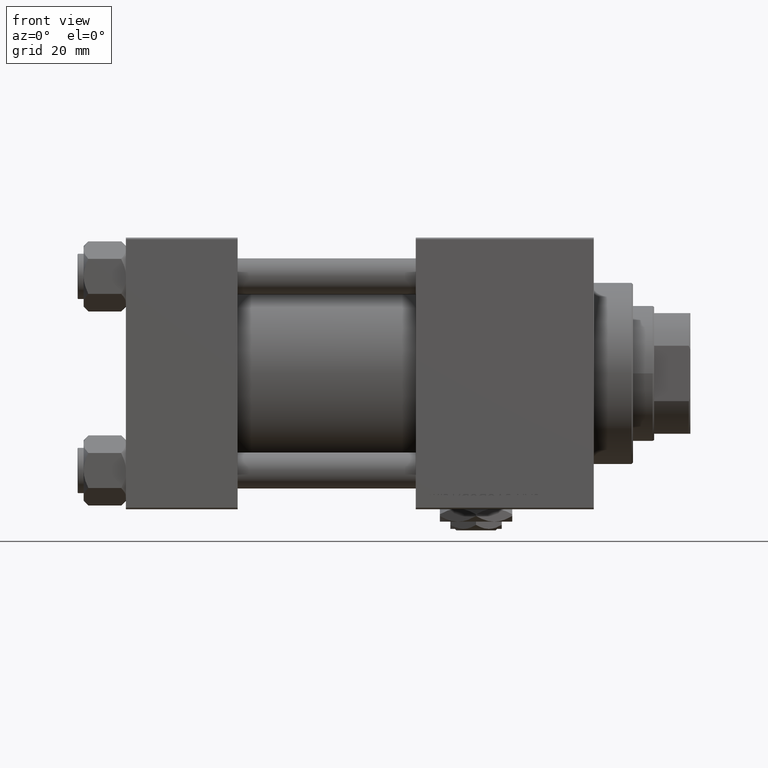
[diagram: clean part render]
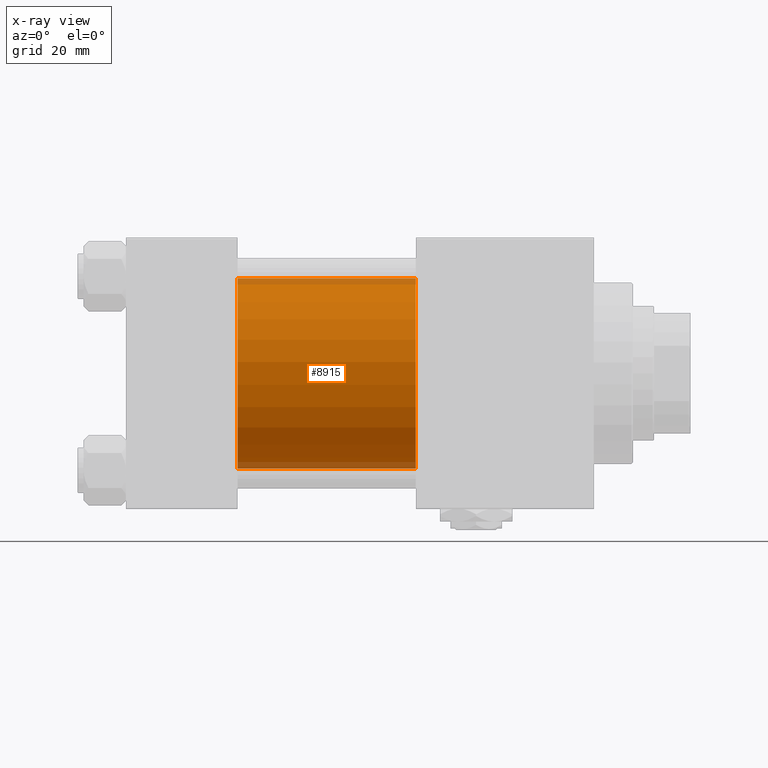
[diagram: x-ray — body ghosted, one internal face saturated and labeled with its STEP entity id]
A machine part, front view, then the same camera in x-ray: the body is ghosted and one INTERNAL B-rep face — a face not visible from any outside direction — is saturated and labeled: STEP entity #8915.
In plain terms, the highlighted cylindrical surface (partial cylindrical patch) has radius 31.5 mm, axis along (-1, -0, -0).
Its self-contained STEP definition (entity closure, byte-faithful):
#48 = CIRCLE ( 'NONE', #18465, 31.50000000000000000 ) ;
#402 = DIRECTION ( 'NONE',  ( 1.000000000000000000, 0.000000000000000000, 0.000000000000000000 ) ) ;
#2516 = LINE ( 'NONE', #51030, #31988 ) ;
#2920 = VERTEX_POINT ( 'NONE', #14345 ) ;
#2971 = EDGE_CURVE ( 'NONE', #35420, #2920, #2516, .T. ) ;
#5255 = CIRCLE ( 'NONE', #26189, 31.50000000000000000 ) ;
#6881 = AXIS2_PLACEMENT_3D ( 'NONE', #36942, #45314, #13075 ) ;
#6891 = VERTEX_POINT ( 'NONE', #14789 ) ;
#8376 = DIRECTION ( 'NONE',  ( 0.000000000000000000, 0.000000000000000000, -1.000000000000000000 ) ) ;
#8915 = ADVANCED_FACE ( 'NONE', ( #28569 ), #32505, .F. ) ;
#12701 = EDGE_LOOP ( 'NONE', ( #18765, #43677, #23183, #47884 ) ) ;
#13075 = DIRECTION ( 'NONE',  ( 0.000000000000000000, 0.000000000000000000, 1.000000000000000000 ) ) ;
#13829 = VECTOR ( 'NONE', #34275, 1000.000000000000000 ) ;
#14345 = CARTESIAN_POINT ( 'NONE',  ( 37.00000000000000000, -2.602085213965210642E-15, 31.50000000000000000 ) ) ;
#14789 = CARTESIAN_POINT ( 'NONE',  ( 37.00000000000000000, 1.255552203348951850E-15, -31.50000000000000000 ) ) ;
#16079 = CARTESIAN_POINT ( 'NONE',  ( 96.00000000000000000, 1.255552203348951850E-15, -31.50000000000000000 ) ) ;
#16973 = EDGE_CURVE ( 'NONE', #35420, #23733, #48, .T. ) ;
#18465 = AXIS2_PLACEMENT_3D ( 'NONE', #20610, #402, #20098 ) ;
#18765 = ORIENTED_EDGE ( 'NONE', *, *, #16973, .T. ) ;
#20098 = DIRECTION ( 'NONE',  ( 0.000000000000000000, 0.000000000000000000, -1.000000000000000000 ) ) ;
#20610 = CARTESIAN_POINT ( 'NONE',  ( 96.00000000000000000, -2.602085213965210642E-15, 0.000000000000000000 ) ) ;
#23183 = ORIENTED_EDGE ( 'NONE', *, *, #25985, .F. ) ;
#23733 = VERTEX_POINT ( 'NONE', #16079 ) ;
#25985 = EDGE_CURVE ( 'NONE', #2920, #6891, #5255, .T. ) ;
#26155 = DIRECTION ( 'NONE',  ( -1.000000000000000000, -0.000000000000000000, -0.000000000000000000 ) ) ;
#26189 = AXIS2_PLACEMENT_3D ( 'NONE', #48481, #28825, #8376 ) ;
#28569 = FACE_OUTER_BOUND ( 'NONE', #12701, .T. ) ;
#28825 = DIRECTION ( 'NONE',  ( 1.000000000000000000, 0.000000000000000000, 0.000000000000000000 ) ) ;
#29249 = CARTESIAN_POINT ( 'NONE',  ( 96.00000000000000000, -2.602085213965210642E-15, 31.50000000000000000 ) ) ;
#31465 = EDGE_CURVE ( 'NONE', #23733, #6891, #50259, .T. ) ;
#31988 = VECTOR ( 'NONE', #26155, 1000.000000000000000 ) ;
#32505 = CYLINDRICAL_SURFACE ( 'NONE', #6881, 31.50000000000000000 ) ;
#34275 = DIRECTION ( 'NONE',  ( -1.000000000000000000, -0.000000000000000000, -0.000000000000000000 ) ) ;
#35420 = VERTEX_POINT ( 'NONE', #29249 ) ;
#36942 = CARTESIAN_POINT ( 'NONE',  ( 96.00000000000000000, -2.602085213965210642E-15, 0.000000000000000000 ) ) ;
#38450 = CARTESIAN_POINT ( 'NONE',  ( 96.00000000000000000, 1.255552203348951850E-15, -31.50000000000000000 ) ) ;
#43677 = ORIENTED_EDGE ( 'NONE', *, *, #31465, .T. ) ;
#45314 = DIRECTION ( 'NONE',  ( -1.000000000000000000, -0.000000000000000000, -0.000000000000000000 ) ) ;
#47884 = ORIENTED_EDGE ( 'NONE', *, *, #2971, .F. ) ;
#48481 = CARTESIAN_POINT ( 'NONE',  ( 37.00000000000000000, -2.602085213965210642E-15, 0.000000000000000000 ) ) ;
#50259 = LINE ( 'NONE', #38450, #13829 ) ;
#51030 = CARTESIAN_POINT ( 'NONE',  ( 96.00000000000000000, -2.602085213965210642E-15, 31.50000000000000000 ) ) ;